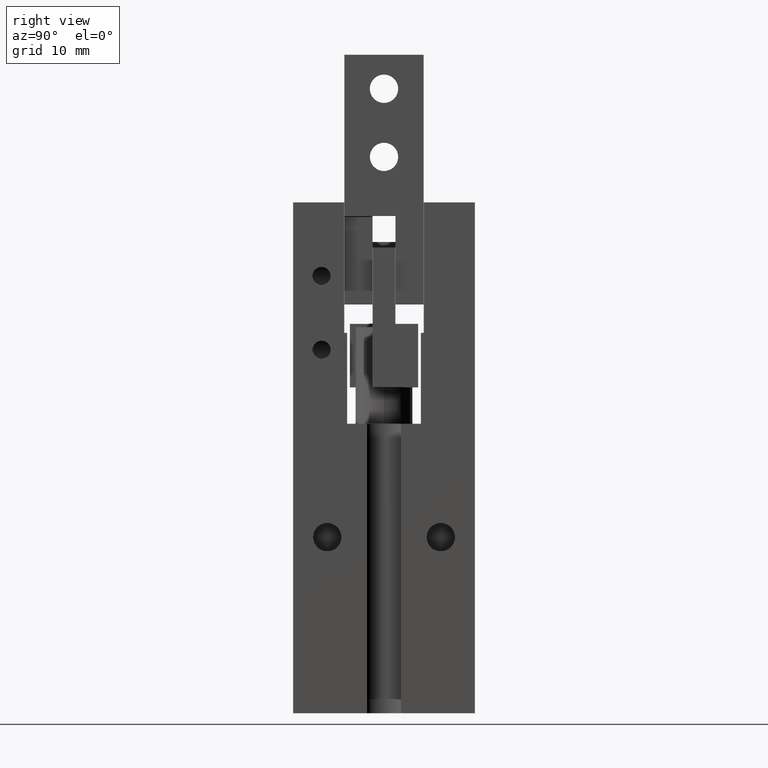
[diagram: clean part render]
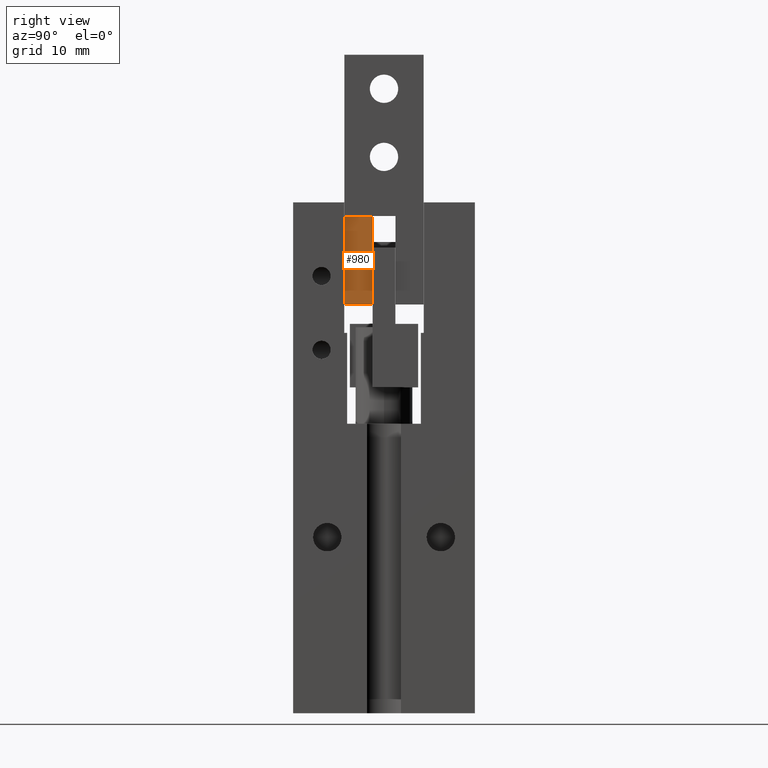
[diagram: same view with one face highlighted and labeled with its STEP entity id]
A machine part, right view. The second image highlights one B-rep face of the part: STEP entity #980.
In plain terms, the highlighted planar face has unit normal (1, -0, 0).
Its self-contained STEP definition (entity closure, byte-faithful):
#806=CARTESIAN_POINT('',(9.49999999999999,-3.49000000000004,36.));
#807=VERTEX_POINT('Vertex38',#806);
#814=CARTESIAN_POINT('',(9.49999999999998,-3.49000000000004,43.7));
#815=VERTEX_POINT('Vertex39',#814);
#816=CARTESIAN_POINT('',(9.49999999999999,-3.49000000000004,39.85));
#817=DIRECTION('',(-2.30695693428604E-016,-5.7673923357151E-017,1.));
#818=VECTOR('',#817,1.);
#819=LINE('nurbsCrv50',#816,#818);
#820=EDGE_CURVE('Edge50',#807,#815,#819,.T.);
#935=CARTESIAN_POINT('',(9.49999999999999,-1.01000000000004,43.7));
#936=VERTEX_POINT('Vertex46',#935);
#937=CARTESIAN_POINT('',(9.49999999999999,-2.25000000000004,43.7));
#938=DIRECTION('',(3.58136459556502E-015,1.,0.));
#939=VECTOR('',#938,1.);
#940=LINE('nurbsCrv61',#937,#939);
#941=EDGE_CURVE('Edge61',#815,#936,#940,.T.);
#957=CARTESIAN_POINT('',(9.49999999999999,-1.01000000000004,36.));
#958=VERTEX_POINT('Vertex47',#957);
#959=CARTESIAN_POINT('',(9.49999999999999,-1.01000000000004,39.85));
#960=DIRECTION('',(-2.30695693428604E-016,0.,1.));
#961=VECTOR('',#960,1.);
#962=LINE('nurbsCrv63',#959,#961);
#963=EDGE_CURVE('Edge63',#958,#936,#962,.T.);
#964=ORIENTED_EDGE('Edgeuse112',*,*,#963,.T.);
#965=ORIENTED_EDGE('Edgeuse113',*,*,#941,.F.);
#966=ORIENTED_EDGE('Edgeuse114',*,*,#820,.F.);
#967=CARTESIAN_POINT('',(9.49999999999999,-2.25000000000004,36.));
#968=DIRECTION('',(3.58136459556502E-015,1.,0.));
#969=VECTOR('',#968,1.);
#970=LINE('nurbsCrv64',#967,#969);
#971=EDGE_CURVE('Edge64',#807,#958,#970,.T.);
#972=ORIENTED_EDGE('Edgeuse115',*,*,#971,.T.);
#973=EDGE_LOOP('',(#964,#965,#966,#972));
#974=FACE_OUTER_BOUND('',#973,.T.);
#975=CARTESIAN_POINT('',(9.49999999999999,-2.25000000000004,39.85));
#976=DIRECTION('',(1.,-3.25578599596817E-015,9.81545658175303E-030));
#977=DIRECTION('',(-3.25578599596817E-015,-1.,2.60462879677454E-015));
#978=AXIS2_PLACEMENT_3D('',#975,#976,#977);
#979=PLANE('nurbsSrf23',#978);
#980=ADVANCED_FACE('Face23',(#974),#979,.T.);